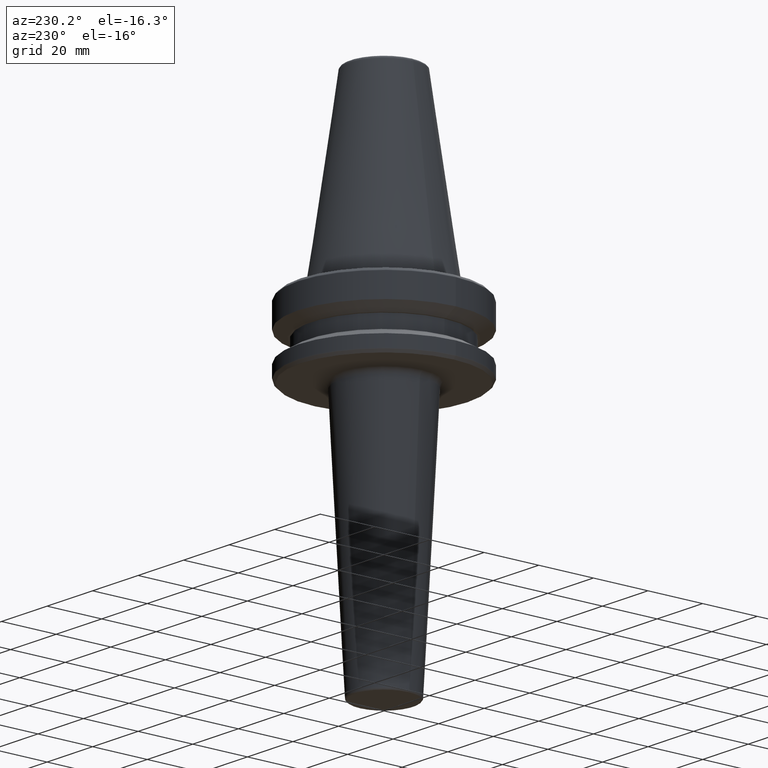
[diagram: clean part render]
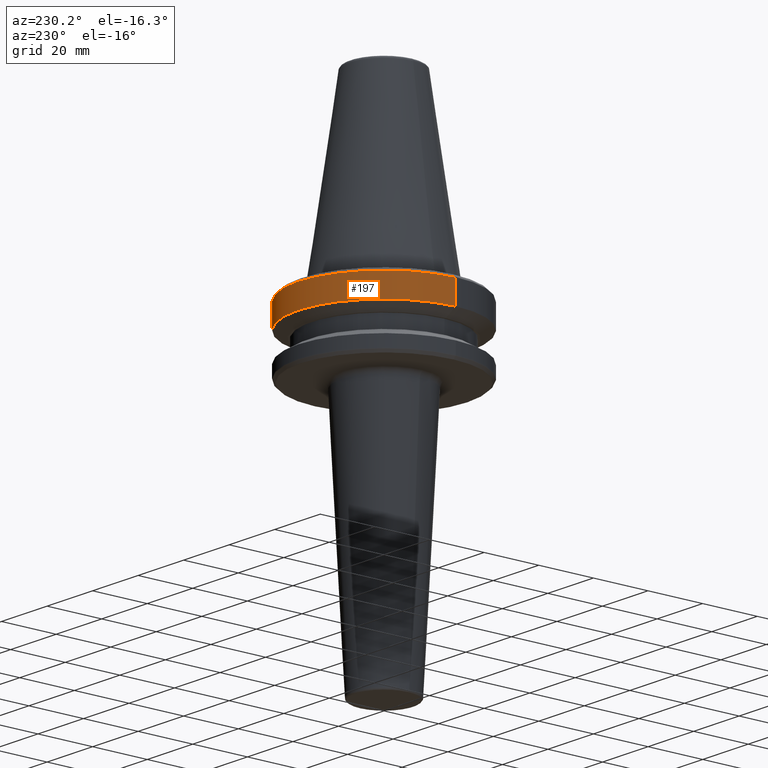
[diagram: same view with one face highlighted and labeled with its STEP entity id]
A machine part, auxiliary view. The second image highlights one B-rep face of the part: STEP entity #197.
In plain terms, the highlighted cylindrical surface (partial cylindrical patch) has radius 31.5 mm, axis along (-0, -0, -1).
Its self-contained STEP definition (entity closure, byte-faithful):
#10 = LINE ( 'NONE', #1199, #414 ) ;
#28 = CARTESIAN_POINT ( 'NONE',  ( -31.50000000000000000, 3.857637417314162700E-015, -11.60014666881784400 ) ) ;
#45 = CIRCLE ( 'NONE', #199, 31.50000000000000000 ) ;
#51 = EDGE_CURVE ( 'NONE', #1066, #1111, #413, .T. ) ;
#79 = VECTOR ( 'NONE', #1139, 1000.000000000000000 ) ;
#86 = DIRECTION ( 'NONE',  ( -0.0000000000000000000, -0.0000000000000000000, -1.000000000000000000 ) ) ;
#114 = DIRECTION ( 'NONE',  ( -0.0000000000000000000, -0.0000000000000000000, -1.000000000000000000 ) ) ;
#135 = LINE ( 'NONE', #665, #79 ) ;
#197 = ADVANCED_FACE ( 'NONE', ( #283 ), #279, .T. ) ;
#199 = AXIS2_PLACEMENT_3D ( 'NONE', #682, #86, #1206 ) ;
#279 = CYLINDRICAL_SURFACE ( 'NONE', #292, 31.50000000000000000 ) ;
#283 = FACE_OUTER_BOUND ( 'NONE', #616, .T. ) ;
#286 = DIRECTION ( 'NONE',  ( -0.0000000000000000000, -0.0000000000000000000, -1.000000000000000000 ) ) ;
#292 = AXIS2_PLACEMENT_3D ( 'NONE', #1164, #286, #492 ) ;
#302 = CARTESIAN_POINT ( 'NONE',  ( 0.0000000000000000000, 0.0000000000000000000, -11.60014666881784400 ) ) ;
#316 = EDGE_CURVE ( 'NONE', #674, #1111, #10, .T. ) ;
#384 = AXIS2_PLACEMENT_3D ( 'NONE', #302, #114, #1152 ) ;
#413 = CIRCLE ( 'NONE', #384, 31.50000000000000000 ) ;
#414 = VECTOR ( 'NONE', #1192, 1000.000000000000000 ) ;
#492 = DIRECTION ( 'NONE',  ( -1.000000000000000000, 0.0000000000000000000, 0.0000000000000000000 ) ) ;
#550 = ORIENTED_EDGE ( 'NONE', *, *, #316, .T. ) ;
#616 = EDGE_LOOP ( 'NONE', ( #897, #550, #1183, #709 ) ) ;
#639 = EDGE_CURVE ( 'NONE', #996, #1066, #135, .T. ) ;
#665 = CARTESIAN_POINT ( 'NONE',  ( -31.50000000000000000, 0.0000000000000000000, 0.0000000000000000000 ) ) ;
#674 = VERTEX_POINT ( 'NONE', #1113 ) ;
#682 = CARTESIAN_POINT ( 'NONE',  ( 0.0000000000000000000, 0.0000000000000000000, -3.165685424949240100 ) ) ;
#709 = ORIENTED_EDGE ( 'NONE', *, *, #639, .F. ) ;
#897 = ORIENTED_EDGE ( 'NONE', *, *, #1005, .T. ) ;
#953 = CARTESIAN_POINT ( 'NONE',  ( -31.50000000000000000, 0.0000000000000000000, -3.165685424949240100 ) ) ;
#996 = VERTEX_POINT ( 'NONE', #953 ) ;
#1005 = EDGE_CURVE ( 'NONE', #996, #674, #45, .T. ) ;
#1014 = CARTESIAN_POINT ( 'NONE',  ( 31.50000000000000000, 0.0000000000000000000, -11.60014666881784400 ) ) ;
#1066 = VERTEX_POINT ( 'NONE', #28 ) ;
#1111 = VERTEX_POINT ( 'NONE', #1014 ) ;
#1113 = CARTESIAN_POINT ( 'NONE',  ( 31.50000000000000000, 3.857637417314162700E-015, -3.165685424949240100 ) ) ;
#1139 = DIRECTION ( 'NONE',  ( -0.0000000000000000000, -0.0000000000000000000, -1.000000000000000000 ) ) ;
#1152 = DIRECTION ( 'NONE',  ( -1.000000000000000000, 0.0000000000000000000, 0.0000000000000000000 ) ) ;
#1164 = CARTESIAN_POINT ( 'NONE',  ( 0.0000000000000000000, 0.0000000000000000000, 0.0000000000000000000 ) ) ;
#1183 = ORIENTED_EDGE ( 'NONE', *, *, #51, .F. ) ;
#1192 = DIRECTION ( 'NONE',  ( -0.0000000000000000000, -0.0000000000000000000, -1.000000000000000000 ) ) ;
#1199 = CARTESIAN_POINT ( 'NONE',  ( 31.50000000000000000, 3.857637417314162700E-015, 0.0000000000000000000 ) ) ;
#1206 = DIRECTION ( 'NONE',  ( -1.000000000000000000, 0.0000000000000000000, 0.0000000000000000000 ) ) ;